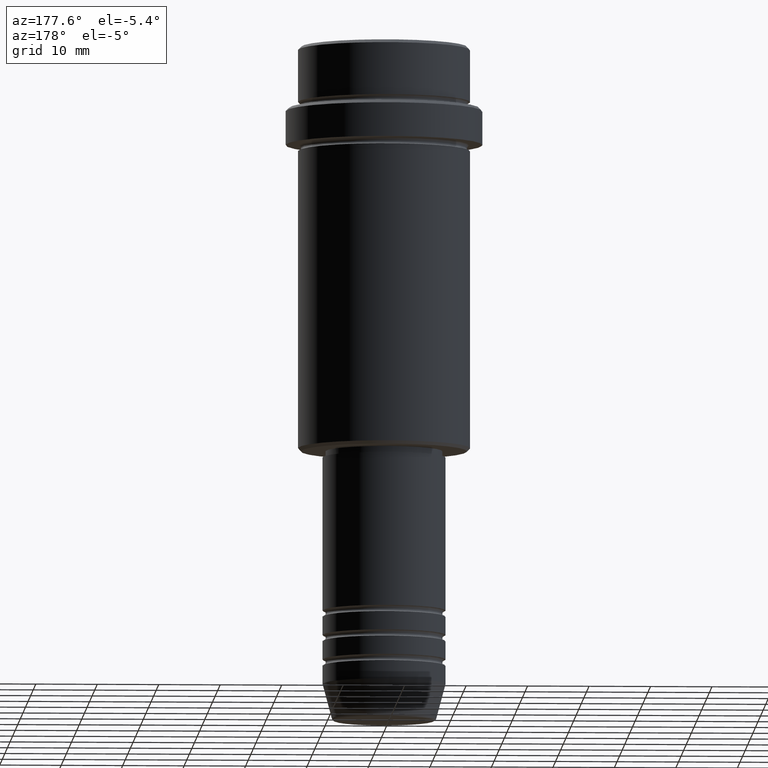
[diagram: clean part render]
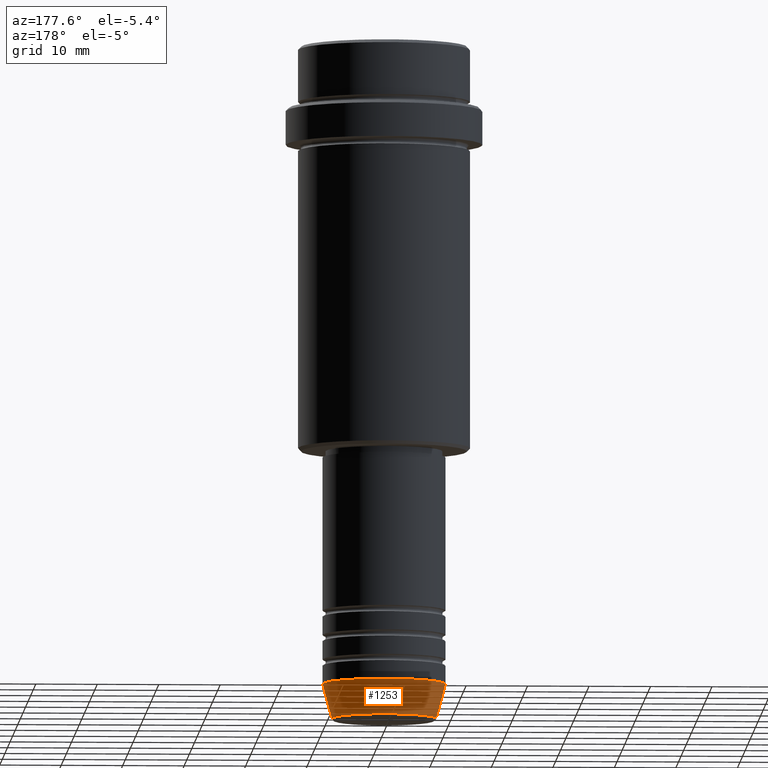
[diagram: same view with one face highlighted and labeled with its STEP entity id]
A machine part, auxiliary view. The second image highlights one B-rep face of the part: STEP entity #1253.
In plain terms, the highlighted conical surface has half-angle 15 deg.
Its self-contained STEP definition (entity closure, byte-faithful):
#4 = CARTESIAN_POINT ( 'NONE',  ( 10.00000000000000000, 0.000000000000000000, -104.0000000000000142 ) ) ;
#20 = CARTESIAN_POINT ( 'NONE',  ( 0.000000000000000000, 0.000000000000000000, -104.0000000000000142 ) ) ;
#36 = CARTESIAN_POINT ( 'NONE',  ( 0.000000000000000000, 0.000000000000000000, -104.0000000000000142 ) ) ;
#41 = ORIENTED_EDGE ( 'NONE', *, *, #511, .F. ) ;
#146 = DIRECTION ( 'NONE',  ( 1.000000000000000000, 0.000000000000000000, 0.000000000000000000 ) ) ;
#260 = DIRECTION ( 'NONE',  ( 1.000000000000000000, 0.000000000000000000, 0.000000000000000000 ) ) ;
#312 = DIRECTION ( 'NONE',  ( 1.000000000000000000, 0.000000000000000000, 0.000000000000000000 ) ) ;
#341 = LINE ( 'NONE', #4, #1370 ) ;
#390 = EDGE_CURVE ( 'NONE', #1240, #598, #341, .T. ) ;
#406 = ORIENTED_EDGE ( 'NONE', *, *, #885, .T. ) ;
#444 = EDGE_LOOP ( 'NONE', ( #406, #979, #41, #1286 ) ) ;
#445 = CARTESIAN_POINT ( 'NONE',  ( 8.491604264568312743, 0.000000000000000000, -109.6294095225512706 ) ) ;
#470 = VERTEX_POINT ( 'NONE', #1153 ) ;
#511 = EDGE_CURVE ( 'NONE', #598, #470, #884, .T. ) ;
#598 = VERTEX_POINT ( 'NONE', #1172 ) ;
#679 = DIRECTION ( 'NONE',  ( -0.000000000000000000, -0.000000000000000000, 1.000000000000000000 ) ) ;
#688 = CARTESIAN_POINT ( 'NONE',  ( 0.000000000000000000, 0.000000000000000000, -109.6294095225512706 ) ) ;
#794 = DIRECTION ( 'NONE',  ( -0.000000000000000000, -0.000000000000000000, 1.000000000000000000 ) ) ;
#884 = CIRCLE ( 'NONE', #1166, 10.00000000000000000 ) ;
#885 = EDGE_CURVE ( 'NONE', #1240, #1294, #1146, .T. ) ;
#887 = VECTOR ( 'NONE', #1157, 1000.000000000000114 ) ;
#978 = AXIS2_PLACEMENT_3D ( 'NONE', #688, #1016, #260 ) ;
#979 = ORIENTED_EDGE ( 'NONE', *, *, #1364, .T. ) ;
#1015 = CARTESIAN_POINT ( 'NONE',  ( -8.491604264568312743, 1.132284198685156584E-15, -109.6294095225512706 ) ) ;
#1016 = DIRECTION ( 'NONE',  ( -0.000000000000000000, -0.000000000000000000, 1.000000000000000000 ) ) ;
#1041 = AXIS2_PLACEMENT_3D ( 'NONE', #20, #794, #312 ) ;
#1074 = CARTESIAN_POINT ( 'NONE',  ( -10.00000000000000000, 1.224646799147353256E-15, -104.0000000000000142 ) ) ;
#1146 = CIRCLE ( 'NONE', #978, 8.491604264568312743 ) ;
#1153 = CARTESIAN_POINT ( 'NONE',  ( -10.00000000000000000, 1.224646799147353256E-15, -104.0000000000000142 ) ) ;
#1157 = DIRECTION ( 'NONE',  ( -0.2588190451025211281, 3.169619151431769872E-17, 0.9659258262890680902 ) ) ;
#1166 = AXIS2_PLACEMENT_3D ( 'NONE', #36, #679, #146 ) ;
#1172 = CARTESIAN_POINT ( 'NONE',  ( 10.00000000000000000, 0.000000000000000000, -104.0000000000000142 ) ) ;
#1240 = VERTEX_POINT ( 'NONE', #445 ) ;
#1253 = ADVANCED_FACE ( 'NONE', ( #1319 ), #1355, .T. ) ;
#1286 = ORIENTED_EDGE ( 'NONE', *, *, #390, .F. ) ;
#1294 = VERTEX_POINT ( 'NONE', #1015 ) ;
#1317 = DIRECTION ( 'NONE',  ( 0.2588190451025211281, 0.000000000000000000, 0.9659258262890680902 ) ) ;
#1319 = FACE_OUTER_BOUND ( 'NONE', #444, .T. ) ;
#1355 = CONICAL_SURFACE ( 'NONE', #1041, 10.00000000000000000, 0.2617993877991498519 ) ;
#1364 = EDGE_CURVE ( 'NONE', #1294, #470, #1380, .T. ) ;
#1370 = VECTOR ( 'NONE', #1317, 1000.000000000000114 ) ;
#1380 = LINE ( 'NONE', #1074, #887 ) ;